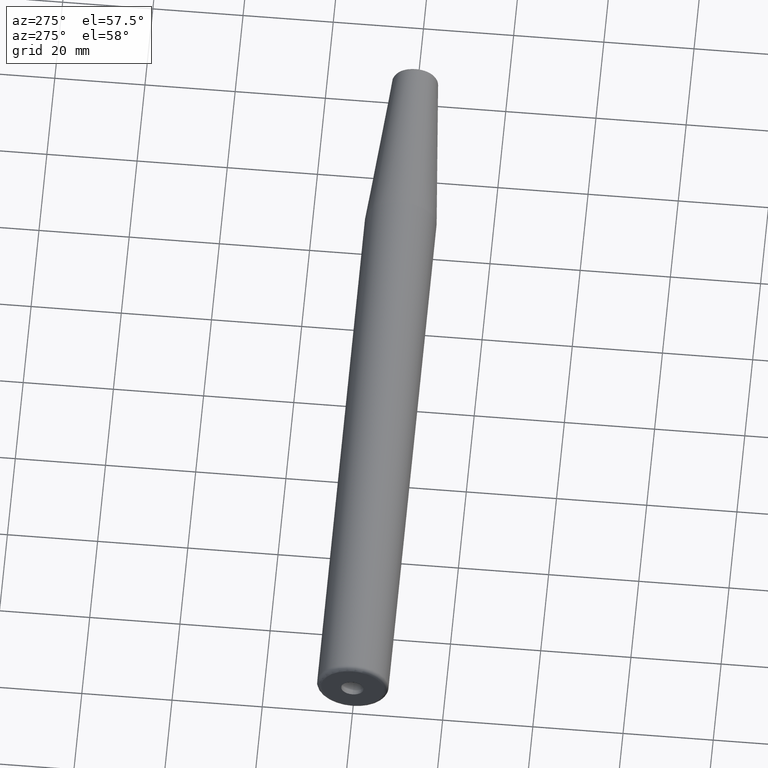
[diagram: clean part render]
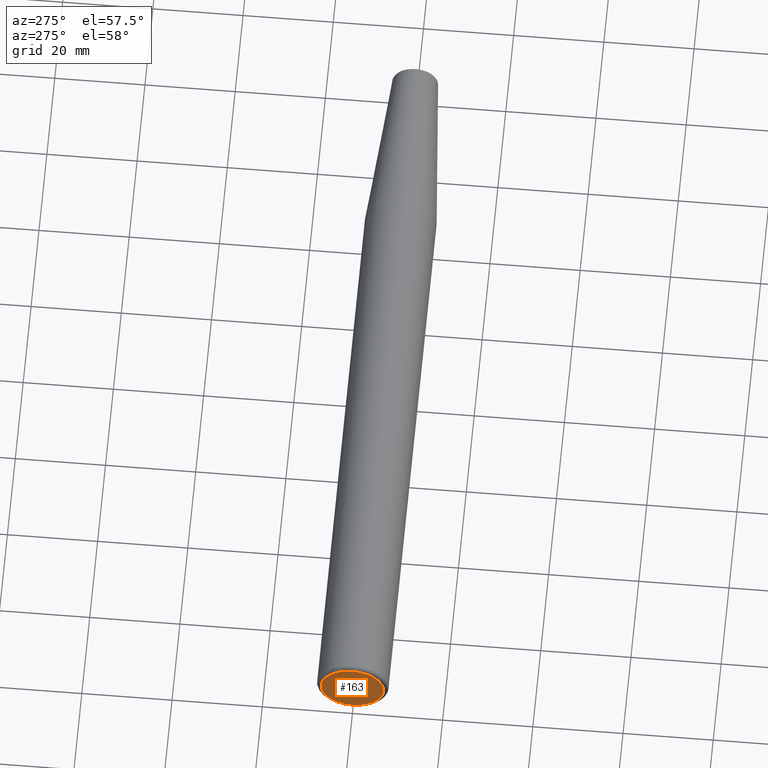
[diagram: same view with one face highlighted and labeled with its STEP entity id]
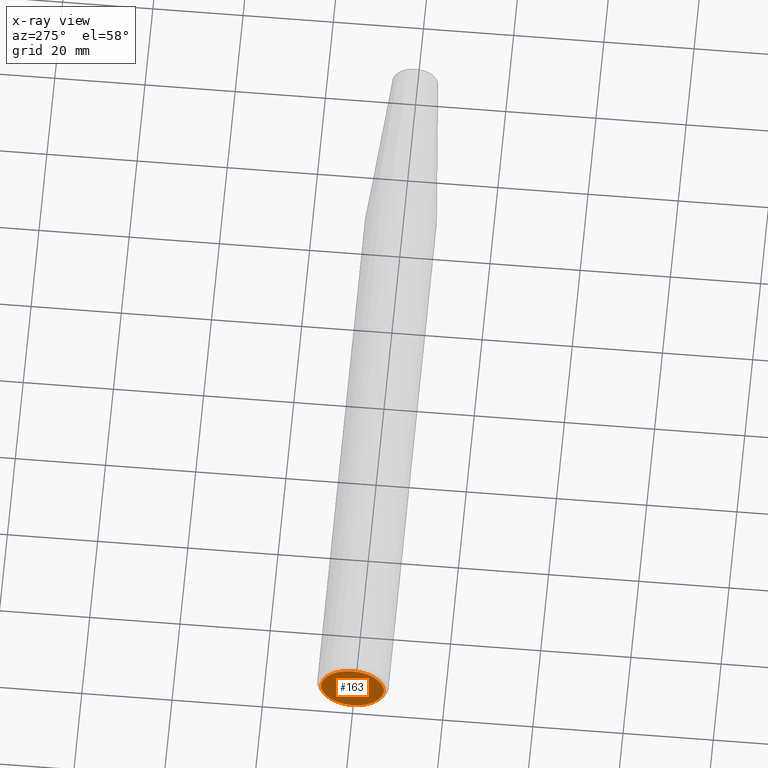
[diagram: x-ray of the same camera — body ghosted, the highlighted face saturated]
A machine part, auxiliary view. The second image highlights one B-rep face of the part: STEP entity #163.
The next image is the same camera in x-ray: the body ghosted, the highlighted face saturated — about 0% of this face is hidden behind the body in this view.
In plain terms, the highlighted planar face has unit normal (-1, 0, 0).
Its self-contained STEP definition (entity closure, byte-faithful):
#18=FACE_BOUND('',#53,.T.);
#20=PLANE('',#210);
#41=FACE_OUTER_BOUND('',#52,.T.);
#52=EDGE_LOOP('',(#141));
#53=EDGE_LOOP('',(#142));
#64=CIRCLE('',#202,2.5);
#65=CIRCLE('',#204,6.93749999999999);
#80=VERTEX_POINT('',#300);
#81=VERTEX_POINT('',#304);
#97=EDGE_CURVE('',#80,#80,#64,.T.);
#99=EDGE_CURVE('',#81,#81,#65,.T.);
#141=ORIENTED_EDGE('',*,*,#99,.F.);
#142=ORIENTED_EDGE('',*,*,#97,.T.);
#163=ADVANCED_FACE('',(#41,#18),#20,.T.);
#202=AXIS2_PLACEMENT_3D('',#301,#246,#247);
#204=AXIS2_PLACEMENT_3D('',#305,#251,#252);
#210=AXIS2_PLACEMENT_3D('',#315,#264,#265);
#246=DIRECTION('center_axis',(1.,0.,0.));
#247=DIRECTION('ref_axis',(0.,0.,1.));
#251=DIRECTION('center_axis',(1.,0.,0.));
#252=DIRECTION('ref_axis',(0.,-1.,-1.83697019872103E-16));
#264=DIRECTION('center_axis',(-1.,0.,0.));
#265=DIRECTION('ref_axis',(0.,0.,1.));
#300=CARTESIAN_POINT('',(-160.,-3.06161699786838E-16,-2.5));
#301=CARTESIAN_POINT('Origin',(-160.,0.,0.));
#304=CARTESIAN_POINT('',(-160.,-8.49598716908475E-16,-6.93749999999999));
#305=CARTESIAN_POINT('Origin',(-160.,0.,0.));
#315=CARTESIAN_POINT('Origin',(-160.,0.,0.));